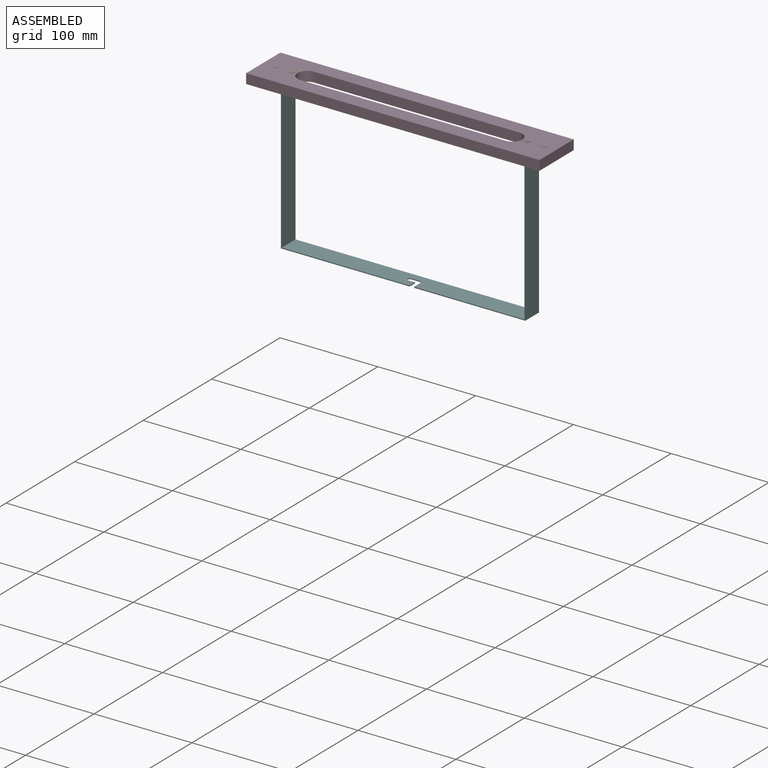
[diagram: assembled view]
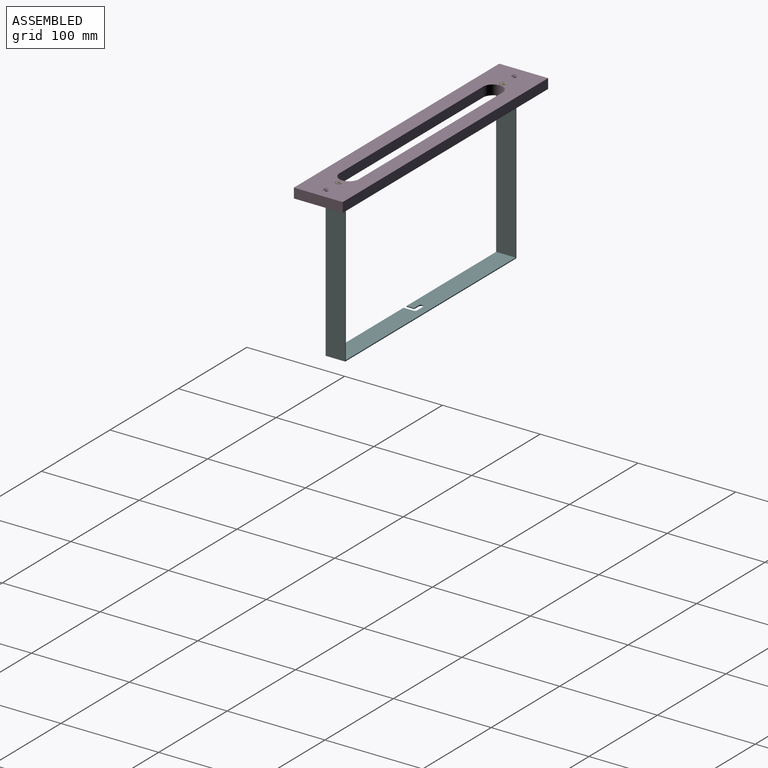
[diagram: assembled view, second angle]
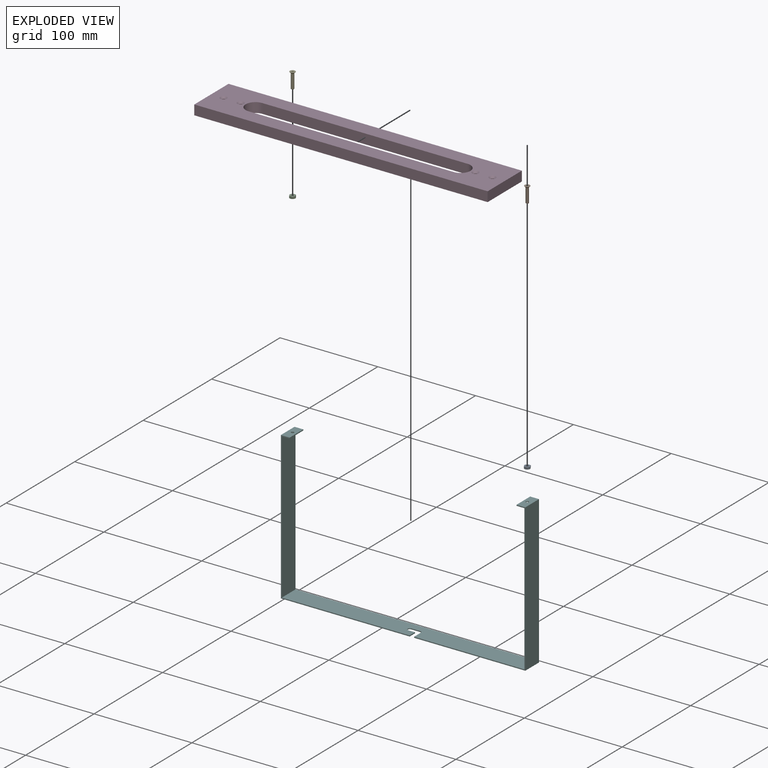
[diagram: exploded view]
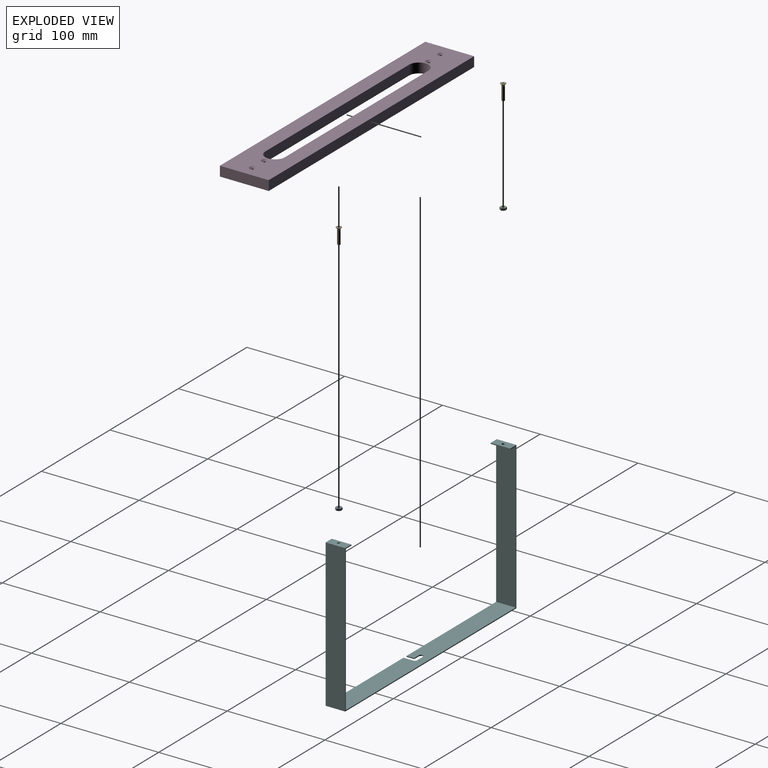
[diagram: exploded view, second angle]
ASSEMBLY  parts=6 mates=5
PART A: 13 faces, bbox 6.4x6.4x2.5 mm
  f0: cone r=1.36mm half-angle=45deg, axis (0,0,-1), area 3.3mm2, adj f1,f10
  f1: cylinder r=1.23mm len=2.46mm, axis (0,0,1), area 14.4mm2, adj f0,f2
  f2: cone r=1.36mm half-angle=45deg, axis (0,0,1), area 3.3mm2, adj f1,f9
  f3: cone r=2.91mm half-angle=68deg, axis (0,0,-1), area 4.7mm2, adj f5,f6,f7,f8,f9,f11,f12
  f4: cone r=2.91mm half-angle=68deg, axis (0,0,1), area 4.7mm2, adj f5,f6,f7,f8,f10,f11,f12
  f5: plane 2.75x2.5mm, normal (-0.87,0.5,0), area 7mm2, adj f3,f4,f6,f12
  f6: plane 3.18x2.5mm, normal (0,1,0), area 7mm2, adj f3,f4,f5,f7
  f7: plane 2.75x2.5mm, normal (0.87,0.5,0), area 7mm2, adj f3,f4,f6,f8
  f8: plane 2.75x2.5mm, normal (0.87,-0.5,0), area 7mm2, adj f3,f4,f7,f11
  f9: plane 5.27x5.27mm, normal (0,0,1), area 14.8mm2, adj f2,f3
  f10: plane 5.27x5.27mm, normal (0,0,-1), area 14.8mm2, adj f0,f4
  f11: plane 3.18x2.5mm, normal (0,-1,0), area 7mm2, adj f3,f4,f8,f12
  f12: plane 2.75x2.5mm, normal (-0.87,-0.5,0), area 7mm2, adj f3,f4,f5,f11
PART B: 23 faces, bbox 5.5x5.5x16 mm
  f0: cone r=1.36mm half-angle=45deg, axis (0,0,-1), area 3.3mm2, adj f1,f22
  f1: cylinder r=1.5mm len=13.8mm, axis (0,0,1), area 130.1mm2, adj f0,f21
  f2: cone r=1.36mm half-angle=45deg, axis (0,0,-1), area 3.3mm2, adj f3,f21
  f3: cylinder r=1.5mm len=3mm, axis (0,0,1), area 0.1mm2, adj f2,f4
  f4: torus R=2.3mm, axis (0,0,1), area 6.2mm2, adj f3,f5
  f5: cone r=2.24mm half-angle=47.9deg, axis (0,0,-1), area 19.3mm2, adj f4,f6
  f6: cylinder r=2.75mm len=5.5mm, axis (0,0,1), area 2.9mm2, adj f5,f20
  f7: plane 1.76x0.75mm, normal (0,0.98,-0.17), area 0.8mm2, adj f8,f18,f19,f20
  f8: plane 1.76x1.44mm, normal (0.98,0,-0.17), area 2mm2, adj f7,f9,f19,f20
  f9: plane 1.76x1.44mm, normal (0,0.98,-0.17), area 2mm2, adj f8,f10,f19,f20
  f10: plane 1.76x0.75mm, normal (0.98,0,-0.17), area 0.8mm2, adj f9,f11,f19,f20
  f11: plane 1.76x1.44mm, normal (0,-0.98,-0.17), area 2mm2, adj f10,f12,f19,f20
  f12: plane 1.76x1.44mm, normal (0.98,0,-0.17), area 2mm2, adj f11,f13,f19,f20
  f13: plane 1.76x0.75mm, normal (0,-0.98,-0.17), area 0.8mm2, adj f12,f14,f19,f20
  f14: plane 1.76x1.44mm, normal (-0.98,0,-0.17), area 2mm2, adj f13,f15,f19,f20
  f15: plane 1.76x1.44mm, normal (0,-0.98,-0.17), area 2mm2, adj f14,f16,f19,f20
  f16: plane 1.76x0.75mm, normal (-0.98,0,-0.17), area 0.8mm2, adj f15,f17,f19,f20
  f17: plane 1.76x1.44mm, normal (0,0.98,-0.17), area 2mm2, adj f16,f18,f19,f20
  f18: plane 1.76x1.44mm, normal (-0.98,0,-0.17), area 2mm2, adj f7,f17,f19,f20
  f19: plane 2.38x2.38mm, normal (0,0,-1), area 0.6mm2, adj f7,f8,f9,f10,f11,f12,f13,f14
  f20: plane 5.5x5.5mm, normal (0,0,-1), area 19.8mm2, adj f6,f7,f8,f9,f10,f11,f12,f13
  f21: plane 3x3mm, normal (0,0,-1), area 2.3mm2, adj f1,f2
  f22: plane 2.46x2.46mm, normal (0,0,1), area 4.7mm2, adj f0
PART C: same geometry as A
PART D: 18 faces, bbox 300x50x10 mm
  f0: plane 300x10mm, normal (0,-1,0), area 3000mm2, adj f6,f7,f12,f13
  f1: plane 300x10mm, normal (0,1,0), area 3000mm2, adj f6,f7,f12,f13
  f2: plane 210x10mm, normal (0,-1,0), area 2100mm2, adj f3,f5,f6,f7
  f3: cylinder r=10mm len=20mm, axis (0,0,-1), area 314.2mm2, adj f2,f4,f6,f7
  f4: plane 210x10mm, normal (0,1,0), area 2100mm2, adj f3,f5,f6,f7
  f5: cylinder r=10mm len=20mm, axis (0,0,-1), area 314.2mm2, adj f2,f4,f6,f7
  f6: plane 300x50mm, normal (0,0,1), area 10344mm2, adj f0,f1,f2,f3,f4,f5,f9,f11
  f7: plane 300x50mm, normal (0,0,-1), area 10451.6mm2, adj f0,f1,f2,f3,f4,f5,f8,f10
  f8: cylinder r=1.65mm len=8.29mm, axis (0,0,1), area 85.9mm2, adj f7,f9
  f9: cone r=1.65mm half-angle=45deg, axis (0,0,1), area 38.1mm2, adj f6,f8
  f10: cylinder r=1.65mm len=8.29mm, axis (0,0,1), area 85.9mm2, adj f7,f11
  f11: cone r=1.65mm half-angle=45deg, axis (0,0,1), area 38.1mm2, adj f6,f10
  f12: plane 50x10mm, normal (-1,0,0), area 500mm2, adj f0,f1,f6,f7
  f13: plane 50x10mm, normal (1,0,0), area 500mm2, adj f0,f1,f6,f7
  f14: cylinder r=1.65mm len=8.29mm, axis (0,0,1), area 85.9mm2, adj f7,f15
  f15: cone r=1.65mm half-angle=45deg, axis (0,0,1), area 38.1mm2, adj f6,f14
  f16: cylinder r=1.65mm len=8.29mm, axis (0,0,1), area 85.9mm2, adj f7,f17
  f17: cone r=1.65mm half-angle=45deg, axis (0,0,1), area 38.1mm2, adj f6,f16
PART E: same geometry as B
PART F: 23 faces, bbox 250x20x151 mm
  f0: plane 250x20mm, normal (0,0,1), area 4907.6mm2, adj f1,f2,f8,f9,f11,f17,f18,f19
  f1: plane 151x131.75mm, normal (0,1,0), area 289.8mm2, adj f0,f2,f3,f4,f5,f6,f7,f21
  f2: plane 151x20mm, normal (-1,0,0), area 3020mm2, adj f0,f1,f3,f8
  f3: plane 20x9mm, normal (0,0,-1), area 172.9mm2, adj f1,f2,f4,f8,f10
  f4: plane 20x1mm, normal (1,0,0), area 20mm2, adj f1,f3,f5,f8
  f5: plane 20x8mm, normal (0,0,1), area 152.9mm2, adj f1,f4,f6,f8,f10
  f6: plane 149x20mm, normal (1,0,0), area 2980mm2, adj f1,f5,f7,f8
  f7: plane 248x20mm, normal (0,0,-1), area 4867.6mm2, adj f1,f6,f8,f9,f15,f17,f18,f19
  f8: plane 250x151mm, normal (0,-1,0), area 566mm2, adj f0,f2,f3,f4,f5,f6,f7,f11
  f9: plane 151x113.75mm, normal (0,1,0), area 271.8mm2, adj f0,f7,f11,f12,f13,f14,f15,f20
  f10: cylinder r=1.5mm len=3mm, axis (0,0,1), area 9.4mm2, adj f3,f5
  f11: plane 151x20mm, normal (1,0,0), area 3020mm2, adj f0,f8,f9,f12
  f12: plane 20x9mm, normal (0,0,-1), area 172.9mm2, adj f8,f9,f11,f13,f16
  f13: plane 20x1mm, normal (-1,0,0), area 20mm2, adj f8,f9,f12,f14
  f14: plane 20x8mm, normal (0,0,1), area 152.9mm2, adj f8,f9,f13,f15,f16
  f15: plane 149x20mm, normal (-1,0,0), area 2980mm2, adj f7,f8,f9,f14
  f16: cylinder r=1.5mm len=3mm, axis (0,0,1), area 9.4mm2, adj f12,f14
  f17: cylinder r=2.25mm len=4.5mm, axis (0,0,1), area 7.1mm2, adj f0,f7,f18,f22
  f18: plane 9x1mm, normal (0,1,0), area 9mm2, adj f0,f7,f17,f19
  f19: cylinder r=2.25mm len=2.25mm, axis (0,0,1), area 3.5mm2, adj f0,f7,f18,f20
  f20: plane 10x1mm, normal (-1,0,0), area 10mm2, adj f0,f7,f9,f19
  f21: plane 7.75x1mm, normal (1,0,0), area 7.8mm2, adj f0,f1,f7,f22
  f22: plane 6.75x1mm, normal (0,-1,0), area 6.8mm2, adj f0,f7,f17,f21
PLACE A rot(axis=(1,0,0),180deg) t=(48.3,-21.93,23.2)mm
PLACE B rot(axis=(-1,0,0),180deg) t=(48.3,-21.93,34.2)mm
PLACE C rot(axis=(1,0,0),180deg) t=(-191.7,-21.93,23.2)mm
PLACE D t=(-71.7,-21.93,24.2)mm
PLACE E rot(axis=(-1,0,0),180deg) t=(-191.7,-21.93,34.2)mm
PLACE F rot(axis=(1,0,0),180deg) t=(-71.7,-21.93,24.2)mm
MATE fastened E.f6 <-> D.f8  axis (0,0,1) through (-191.7,-21.93,34.2)mm
MATE fastened B.f6 <-> D.f10  axis (0,0,1) through (48.3,-21.93,34.2)mm
MATE fastened C.f4 <-> F.f10  axis (0,0,1) through (-191.7,-21.93,23.2)mm
MATE fastened F.f10 <-> D.f8  axis (0,0,1) through (-191.7,-21.93,24.2)mm
MATE fastened A.f4 <-> F.f16  axis (0,0,1) through (48.3,-21.93,23.2)mm
